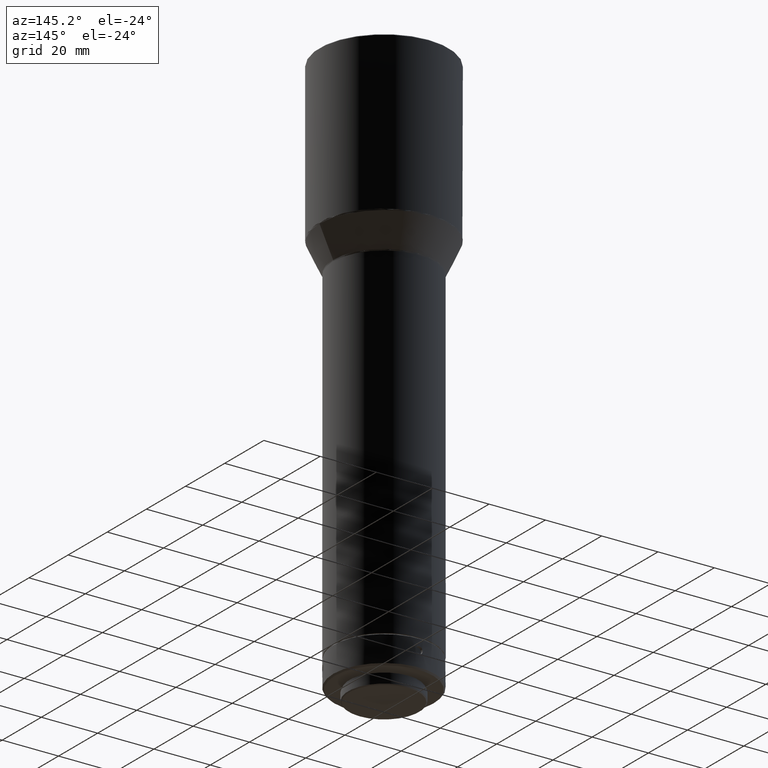
[diagram: clean part render]
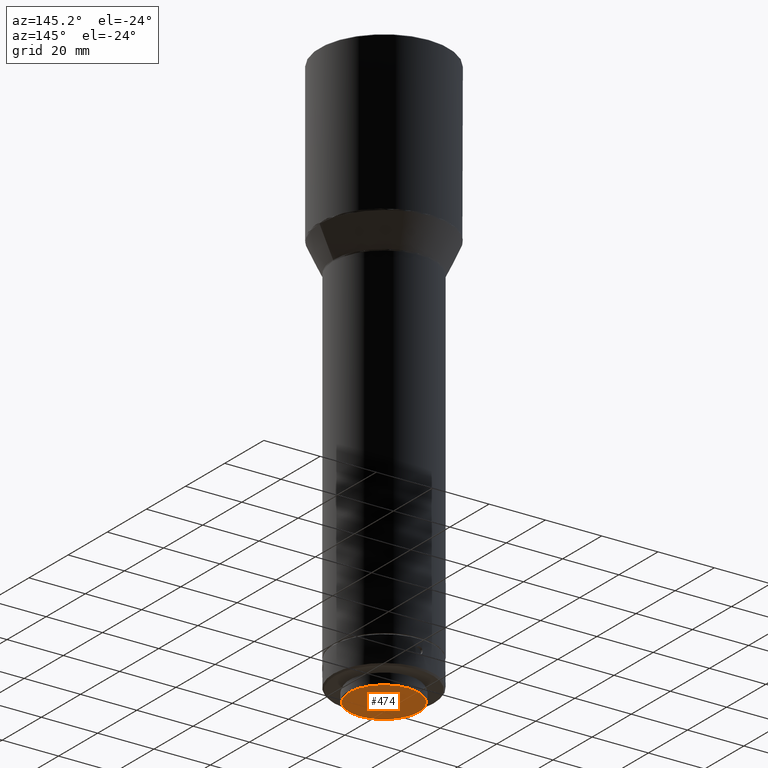
[diagram: same view with one face highlighted and labeled with its STEP entity id]
A machine part, auxiliary view. The second image highlights one B-rep face of the part: STEP entity #474.
In plain terms, the highlighted planar face has unit normal (0, 0, 1).
Its self-contained STEP definition (entity closure, byte-faithful):
#39 = AXIS2_PLACEMENT_3D ( 'NONE', #614, #376, #336 ) ;
#72 = FACE_OUTER_BOUND ( 'NONE', #588, .T. ) ;
#105 = AXIS2_PLACEMENT_3D ( 'NONE', #481, #817, #753 ) ;
#181 = CARTESIAN_POINT ( 'NONE',  ( -2.602085213965210247E-15, -12.40000000000003055, -770.1518460000002051 ) ) ;
#192 = ORIENTED_EDGE ( 'NONE', *, *, #698, .F. ) ;
#255 = CIRCLE ( 'NONE', #105, 12.40000000000001101 ) ;
#336 = DIRECTION ( 'NONE',  ( 0.000000000000000000, -1.000000000000000000, 1.417682489495849437E-17 ) ) ;
#376 = DIRECTION ( 'NONE',  ( 4.059358550877070560E-33, 1.417682489495849437E-17, 1.000000000000000000 ) ) ;
#474 = ADVANCED_FACE ( 'NONE', ( #72 ), #603, .F. ) ;
#481 = CARTESIAN_POINT ( 'NONE',  ( -2.602085213965210247E-15, -1.989680005553126171E-14, -770.1518460000002051 ) ) ;
#502 = VERTEX_POINT ( 'NONE', #181 ) ;
#588 = EDGE_LOOP ( 'NONE', ( #192 ) ) ;
#603 = PLANE ( 'NONE',  #39 ) ;
#614 = CARTESIAN_POINT ( 'NONE',  ( -6.803944290891100921E-16, 10.74999999999999645, -770.1518460000002051 ) ) ;
#698 = EDGE_CURVE ( 'NONE', #502, #502, #255, .T. ) ;
#753 = DIRECTION ( 'NONE',  ( 0.000000000000000000, -1.000000000000000000, 0.000000000000000000 ) ) ;
#817 = DIRECTION ( 'NONE',  ( -1.194078953677994046E-30, -4.370956789862821938E-15, 1.000000000000000000 ) ) ;